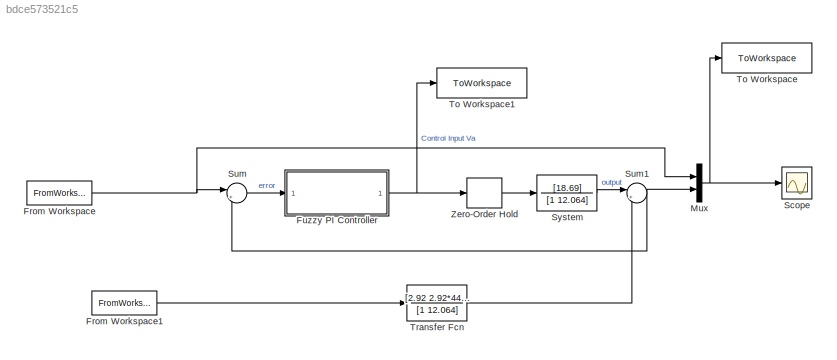
MODEL slx_bdce573521c5
KIND model
CONFIG AbsTol = auto
CONFIG EnableMultiTasking = off
CONFIG FixedStep = auto
CONFIG MaxStep = auto
CONFIG MinStep = auto
CONFIG RelTol = 1e-3
CONFIG SampleTimeConstraint = Unconstrained
CONFIG SolverName = VariableStepAuto
CONFIG StartTime = 0.0
CONFIG StopTime = 30
BLOCK [TransferFcn]  System
  Denominator = [1 12.064]
  Numerator = [18.69]
BLOCK [FromWorkspace] From Workspace
  SampleTime = Ts
  VariableName = r3
BLOCK [FromWorkspace] From Workspace1
  SampleTime = Ts
  VariableName = Tl
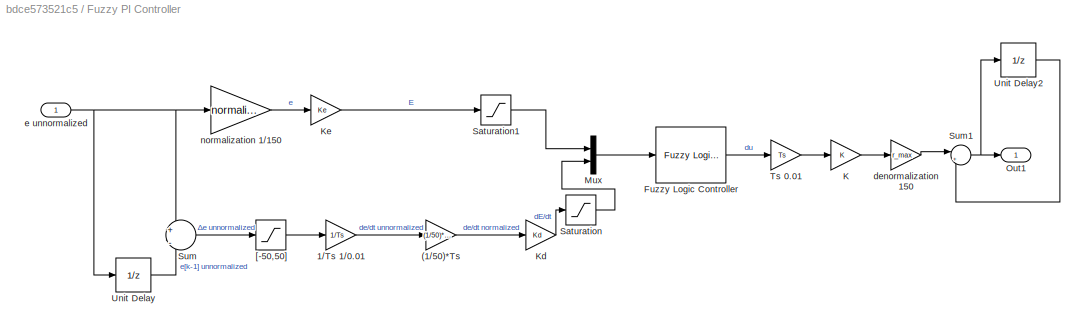
BLOCK [SubSystem] Fuzzy PI Controller
BLOCK [Gain] Fuzzy PI Controller/(1//50)*Ts
  Gain = (1/50)*Ts
BLOCK [Gain] Fuzzy PI Controller/1//Ts 1//0.01
  Gain = 1/Ts
BLOCK [Reference] Fuzzy PI Controller/Fuzzy Logic Controller  REF=fuzblock/Fuzzy Logic   (lib defined in mdl_858b3b3e7478)
Controller
  SourceBlock = fuzblock/Fuzzy Logic \nController
  SourceType = Fuzzy Inference System
BLOCK [Gain] Fuzzy PI Controller/K
  Gain = K
BLOCK [Gain] Fuzzy PI Controller/Kd 
  Gain = Kd
BLOCK [Gain] Fuzzy PI Controller/Ke 
  Gain = Ke
BLOCK [Mux] Fuzzy PI Controller/Mux
  DisplayOption = bar
  Inputs = 2
BLOCK [Outport] Fuzzy PI Controller/Out1
BLOCK [Saturate] Fuzzy PI Controller/Saturation
  LowerLimit = -1
  UpperLimit = 1
BLOCK [Saturate] Fuzzy PI Controller/Saturation1
  LowerLimit = -1
  UpperLimit = 1
BLOCK [Sum] Fuzzy PI Controller/Sum
  Inputs = +|-
BLOCK [Sum] Fuzzy PI Controller/Sum1
  Inputs = |++
BLOCK [Gain] Fuzzy PI Controller/Ts 0.01
  Gain = Ts
BLOCK [UnitDelay] Fuzzy PI Controller/Unit Delay
  HasFrameUpgradeWarning = on
  SampleTime = Ts
BLOCK [UnitDelay] Fuzzy PI Controller/Unit Delay2
  HasFrameUpgradeWarning = on
  SampleTime = -1
BLOCK [Saturate] Fuzzy PI Controller/[-50,50]
  LowerLimit = -50
  UpperLimit = 50
BLOCK [Gain] Fuzzy PI Controller/denormalization 150
  Gain = r_max
BLOCK [Inport] Fuzzy PI Controller/e unnormalized
BLOCK [Gain] Fuzzy PI Controller/normalization 1//150
  Gain = normalization
BLOCK [Mux] Mux
  DisplayOption = bar
  Inputs = 2
BLOCK [Scope] Scope
  Floating = off
  NumInputPorts = 1
  ScopeSpecificationString = Simulink.scopes.TimeScopeBlockCfg('CurrentConfiguration', extmgr.ConfigurationSet(extmgr.Configuration('Core','General UI',true),extmgr.Configuration('Core','Source UI',true),extmgr.Configuration('Sources','WiredSimulink',true),extmgr.Configuration('Visuals','Time Domain',true,'SerializedDisplays',{struct('MinYLimReal','-49.83924','MaxYLimReal','210.6571','YLabelReal','','MinYLimMag','0.00000','Ma...<+1374ch>
BLOCK [Sum] Sum
  Inputs = |+-
BLOCK [Sum] Sum1
  Inputs = |+-
BLOCK [ToWorkspace] To Workspace
  FixptAsFi = on
  MaxDataPoints = inf
  SampleTime = Ts
  SaveFormat = Timeseries
  VariableName = omega_s3
BLOCK [ToWorkspace] To Workspace1
  FixptAsFi = on
  MaxDataPoints = inf
  SampleTime = -1
  SaveFormat = Timeseries
  VariableName = Va_s3
BLOCK [TransferFcn] Transfer Fcn
  Denominator = [1 12.064]
  Numerator = [2.92 2.92*440]
BLOCK [ZeroOrderHold] Zero-Order Hold
  SampleTime = Ts
LINE  System:1 -> Sum1:1
LINE From Workspace1:1 -> Transfer Fcn:1
NET From Workspace:1 -> Mux:1, Sum:1
LINE Fuzzy PI Controller/(1//50)*Ts:1 -> Fuzzy PI Controller/Kd :1
LINE Fuzzy PI Controller/1//Ts 1//0.01:1 -> Fuzzy PI Controller/(1//50)*Ts:1
LINE Fuzzy PI Controller/Fuzzy Logic Controller:1 -> Fuzzy PI Controller/Ts 0.01:1
LINE Fuzzy PI Controller/K:1 -> Fuzzy PI Controller/denormalization 150:1
LINE Fuzzy PI Controller/Kd :1 -> Fuzzy PI Controller/Saturation:1
LINE Fuzzy PI Controller/Ke :1 -> Fuzzy PI Controller/Saturation1:1
LINE Fuzzy PI Controller/Mux:1 -> Fuzzy PI Controller/Fuzzy Logic Controller:1
LINE Fuzzy PI Controller/Saturation1:1 -> Fuzzy PI Controller/Mux:1
LINE Fuzzy PI Controller/Saturation:1 -> Fuzzy PI Controller/Mux:2
NET Fuzzy PI Controller/Sum1:1 -> Fuzzy PI Controller/Out1:1, Fuzzy PI Controller/Unit Delay2:1
LINE Fuzzy PI Controller/Sum:1 -> Fuzzy PI Controller/[-50,50]:1
LINE Fuzzy PI Controller/Ts 0.01:1 -> Fuzzy PI Controller/K:1
LINE Fuzzy PI Controller/Unit Delay2:1 -> Fuzzy PI Controller/Sum1:2
LINE Fuzzy PI Controller/Unit Delay:1 -> Fuzzy PI Controller/Sum:2
LINE Fuzzy PI Controller/[-50,50]:1 -> Fuzzy PI Controller/1//Ts 1//0.01:1
LINE Fuzzy PI Controller/denormalization 150:1 -> Fuzzy PI Controller/Sum1:1
NET Fuzzy PI Controller/e unnormalized:1 -> Fuzzy PI Controller/Sum:1, Fuzzy PI Controller/Unit Delay:1, Fuzzy PI Controller/normalization 1//150:1
LINE Fuzzy PI Controller/normalization 1//150:1 -> Fuzzy PI Controller/Ke :1
NET Fuzzy PI Controller:1 -> To Workspace1:1, Zero-Order Hold:1
NET Mux:1 -> Scope:1, To Workspace:1
NET Sum1:1 -> Mux:2, Sum:2
LINE Sum:1 -> Fuzzy PI Controller:1
LINE Transfer Fcn:1 -> Sum1:2
LINE Zero-Order Hold:1 ->  System:1
note: NET lines group one-source signal fan-out (src -> all destinations, sorted); 1:1 wires keep LINE
